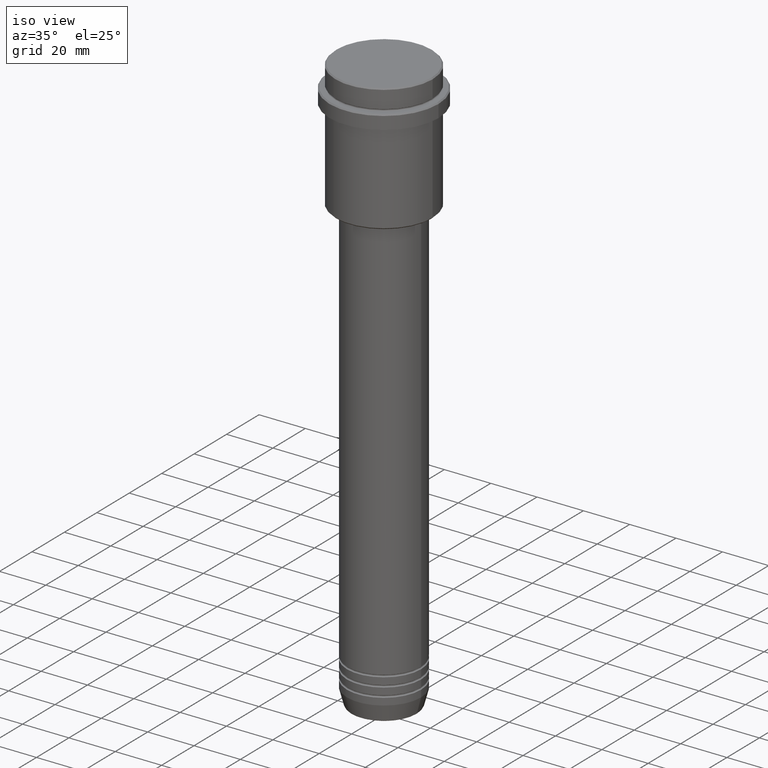
[diagram: clean part render]
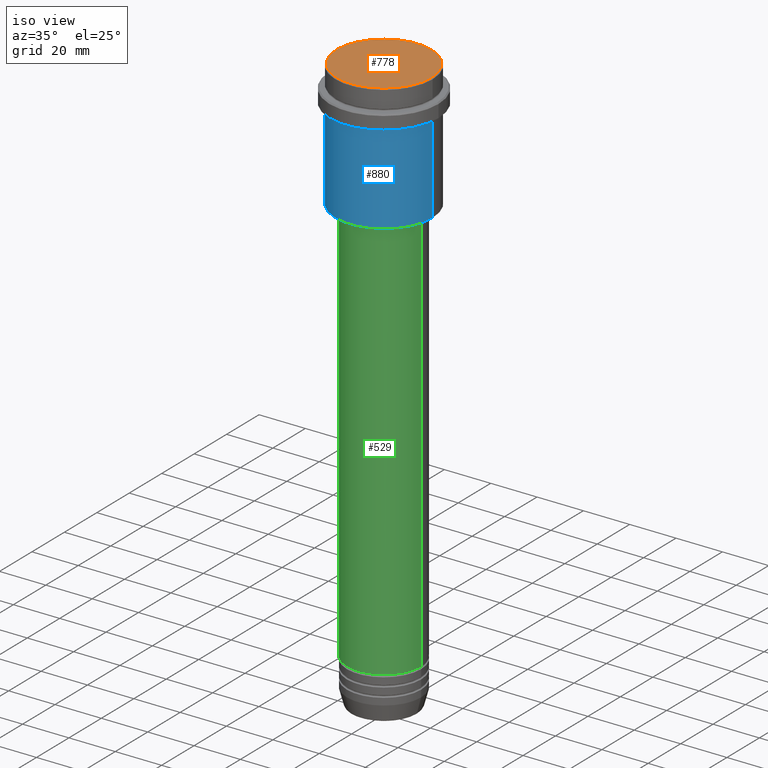
[diagram: same view with three faces highlighted in distinct colors, each labeled with its STEP entity id]
A machine part, iso view with three faces highlighted in distinct colors.
Their STEP definitions:

[orange] entity #778 — the highlighted planar face has unit normal (0, -0, 1).
#89 = ORIENTED_EDGE ( 'NONE', *, *, #1225, .T. ) ;
#237 = AXIS2_PLACEMENT_3D ( 'NONE', #412, #967, #825 ) ;
#244 = CARTESIAN_POINT ( 'NONE',  ( 20.50000000000001776, 2.541142108230758663E-15, 0.000000000000000000 ) ) ;
#309 = CARTESIAN_POINT ( 'NONE',  ( 0.000000000000000000, 0.000000000000000000, 0.000000000000000000 ) ) ;
#322 = EDGE_CURVE ( 'NONE', #1356, #1066, #598, .T. ) ;
#412 = CARTESIAN_POINT ( 'NONE',  ( 0.000000000000000000, 0.000000000000000000, 0.000000000000000000 ) ) ;
#428 = DIRECTION ( 'NONE',  ( -0.000000000000000000, -0.000000000000000000, 1.000000000000000000 ) ) ;
#598 = CIRCLE ( 'NONE', #617, 20.50000000000001776 ) ;
#617 = AXIS2_PLACEMENT_3D ( 'NONE', #818, #1246, #1229 ) ;
#706 = CARTESIAN_POINT ( 'NONE',  ( -20.50000000000001776, 0.000000000000000000, 0.000000000000000000 ) ) ;
#778 = ADVANCED_FACE ( 'NONE', ( #1149 ), #962, .T. ) ;
#818 = CARTESIAN_POINT ( 'NONE',  ( 0.000000000000000000, 0.000000000000000000, 0.000000000000000000 ) ) ;
#825 = DIRECTION ( 'NONE',  ( 1.000000000000000000, 0.000000000000000000, 0.000000000000000000 ) ) ;
#844 = EDGE_LOOP ( 'NONE', ( #89, #999 ) ) ;
#962 = PLANE ( 'NONE',  #237 ) ;
#967 = DIRECTION ( 'NONE',  ( 0.000000000000000000, -0.000000000000000000, 1.000000000000000000 ) ) ;
#993 = AXIS2_PLACEMENT_3D ( 'NONE', #309, #428, #1068 ) ;
#999 = ORIENTED_EDGE ( 'NONE', *, *, #322, .T. ) ;
#1066 = VERTEX_POINT ( 'NONE', #706 ) ;
#1068 = DIRECTION ( 'NONE',  ( 1.000000000000000000, 0.000000000000000000, 0.000000000000000000 ) ) ;
#1149 = FACE_OUTER_BOUND ( 'NONE', #844, .T. ) ;
#1225 = EDGE_CURVE ( 'NONE', #1066, #1356, #1235, .T. ) ;
#1229 = DIRECTION ( 'NONE',  ( 1.000000000000000000, 0.000000000000000000, 0.000000000000000000 ) ) ;
#1235 = CIRCLE ( 'NONE', #993, 20.50000000000001776 ) ;
#1246 = DIRECTION ( 'NONE',  ( -0.000000000000000000, -0.000000000000000000, 1.000000000000000000 ) ) ;
#1356 = VERTEX_POINT ( 'NONE', #244 ) ;

[blue] entity #880 — the highlighted cylindrical surface (partial cylindrical patch) has radius 21 mm, axis along (-0, -0, 1).
#29 = FACE_OUTER_BOUND ( 'NONE', #319, .T. ) ;
#71 = DIRECTION ( 'NONE',  ( 1.000000000000000000, 0.000000000000000000, 0.000000000000000000 ) ) ;
#117 = DIRECTION ( 'NONE',  ( -0.000000000000000000, -0.000000000000000000, 1.000000000000000000 ) ) ;
#133 = DIRECTION ( 'NONE',  ( -0.000000000000000000, -0.000000000000000000, 1.000000000000000000 ) ) ;
#319 = EDGE_LOOP ( 'NONE', ( #378, #1019, #1312, #526 ) ) ;
#348 = CARTESIAN_POINT ( 'NONE',  ( -20.99999999999999645, 2.571758278209441267E-15, 0.000000000000000000 ) ) ;
#367 = DIRECTION ( 'NONE',  ( -0.000000000000000000, -0.000000000000000000, 1.000000000000000000 ) ) ;
#368 = VERTEX_POINT ( 'NONE', #622 ) ;
#378 = ORIENTED_EDGE ( 'NONE', *, *, #1357, .F. ) ;
#418 = DIRECTION ( 'NONE',  ( -0.000000000000000000, -0.000000000000000000, 1.000000000000000000 ) ) ;
#452 = CYLINDRICAL_SURFACE ( 'NONE', #532, 20.99999999999999645 ) ;
#468 = AXIS2_PLACEMENT_3D ( 'NONE', #517, #418, #71 ) ;
#471 = CARTESIAN_POINT ( 'NONE',  ( 0.000000000000000000, 0.000000000000000000, 0.000000000000000000 ) ) ;
#517 = CARTESIAN_POINT ( 'NONE',  ( 0.000000000000000000, 0.000000000000000000, -16.00000000000000355 ) ) ;
#518 = AXIS2_PLACEMENT_3D ( 'NONE', #791, #133, #1206 ) ;
#526 = ORIENTED_EDGE ( 'NONE', *, *, #819, .F. ) ;
#532 = AXIS2_PLACEMENT_3D ( 'NONE', #471, #367, #1103 ) ;
#552 = VERTEX_POINT ( 'NONE', #643 ) ;
#583 = CIRCLE ( 'NONE', #468, 20.99999999999999645 ) ;
#619 = VECTOR ( 'NONE', #117, 1000.000000000000000 ) ;
#622 = CARTESIAN_POINT ( 'NONE',  ( -20.99999999999999645, 2.571758278209441267E-15, -54.49999999999995026 ) ) ;
#643 = CARTESIAN_POINT ( 'NONE',  ( 20.99999999999999645, 0.000000000000000000, -16.00000000000000355 ) ) ;
#734 = CARTESIAN_POINT ( 'NONE',  ( 20.99999999999999645, 0.000000000000000000, -54.49999999999995026 ) ) ;
#791 = CARTESIAN_POINT ( 'NONE',  ( 0.000000000000000000, 0.000000000000000000, -54.49999999999995026 ) ) ;
#819 = EDGE_CURVE ( 'NONE', #1181, #552, #583, .T. ) ;
#833 = VERTEX_POINT ( 'NONE', #734 ) ;
#880 = ADVANCED_FACE ( 'NONE', ( #29 ), #452, .T. ) ;
#881 = DIRECTION ( 'NONE',  ( -0.000000000000000000, -0.000000000000000000, 1.000000000000000000 ) ) ;
#889 = EDGE_CURVE ( 'NONE', #833, #552, #1318, .T. ) ;
#996 = LINE ( 'NONE', #348, #1169 ) ;
#1009 = CARTESIAN_POINT ( 'NONE',  ( 20.99999999999999645, 0.000000000000000000, 0.000000000000000000 ) ) ;
#1019 = ORIENTED_EDGE ( 'NONE', *, *, #1410, .T. ) ;
#1103 = DIRECTION ( 'NONE',  ( 1.000000000000000000, 0.000000000000000000, 0.000000000000000000 ) ) ;
#1167 = CARTESIAN_POINT ( 'NONE',  ( -20.99999999999999645, 2.571758278209441267E-15, -16.00000000000000355 ) ) ;
#1169 = VECTOR ( 'NONE', #881, 1000.000000000000000 ) ;
#1181 = VERTEX_POINT ( 'NONE', #1167 ) ;
#1206 = DIRECTION ( 'NONE',  ( -1.000000000000000000, 0.000000000000000000, 0.000000000000000000 ) ) ;
#1312 = ORIENTED_EDGE ( 'NONE', *, *, #889, .T. ) ;
#1318 = LINE ( 'NONE', #1009, #619 ) ;
#1330 = CIRCLE ( 'NONE', #518, 20.99999999999999645 ) ;
#1357 = EDGE_CURVE ( 'NONE', #368, #1181, #996, .T. ) ;
#1410 = EDGE_CURVE ( 'NONE', #368, #833, #1330, .T. ) ;

[green] entity #529 — the highlighted cylindrical surface (partial cylindrical patch) has radius 16 mm, axis along (-0, -0, 1).
#5 = AXIS2_PLACEMENT_3D ( 'NONE', #954, #1065, #1349 ) ;
#27 = VERTEX_POINT ( 'NONE', #640 ) ;
#44 = CARTESIAN_POINT ( 'NONE',  ( 16.00000000000000000, 0.000000000000000000, -230.9999999999998863 ) ) ;
#76 = EDGE_CURVE ( 'NONE', #27, #257, #795, .T. ) ;
#163 = EDGE_LOOP ( 'NONE', ( #1174, #963, #1295, #1102 ) ) ;
#175 = CARTESIAN_POINT ( 'NONE',  ( -16.00000000000000355, 1.959434878635765526E-15, -56.00000000000000000 ) ) ;
#192 = AXIS2_PLACEMENT_3D ( 'NONE', #1000, #1313, #445 ) ;
#234 = CARTESIAN_POINT ( 'NONE',  ( 16.00000000000000355, 0.000000000000000000, -56.00000000000000000 ) ) ;
#257 = VERTEX_POINT ( 'NONE', #175 ) ;
#295 = AXIS2_PLACEMENT_3D ( 'NONE', #1088, #457, #1101 ) ;
#346 = VERTEX_POINT ( 'NONE', #44 ) ;
#351 = EDGE_CURVE ( 'NONE', #27, #346, #775, .T. ) ;
#374 = VERTEX_POINT ( 'NONE', #234 ) ;
#445 = DIRECTION ( 'NONE',  ( 1.000000000000000000, 0.000000000000000000, 0.000000000000000000 ) ) ;
#457 = DIRECTION ( 'NONE',  ( -0.000000000000000000, -0.000000000000000000, 1.000000000000000000 ) ) ;
#487 = CARTESIAN_POINT ( 'NONE',  ( -16.00000000000000000, 1.959434878635765131E-15, 0.000000000000000000 ) ) ;
#529 = ADVANCED_FACE ( 'NONE', ( #566 ), #994, .T. ) ;
#566 = FACE_OUTER_BOUND ( 'NONE', #163, .T. ) ;
#580 = VECTOR ( 'NONE', #922, 1000.000000000000000 ) ;
#640 = CARTESIAN_POINT ( 'NONE',  ( -16.00000000000000000, 1.959434878635765131E-15, -230.9999999999998863 ) ) ;
#684 = LINE ( 'NONE', #890, #1092 ) ;
#775 = CIRCLE ( 'NONE', #5, 16.00000000000000000 ) ;
#795 = LINE ( 'NONE', #487, #580 ) ;
#890 = CARTESIAN_POINT ( 'NONE',  ( 16.00000000000000000, 0.000000000000000000, 0.000000000000000000 ) ) ;
#897 = DIRECTION ( 'NONE',  ( -0.000000000000000000, -0.000000000000000000, 1.000000000000000000 ) ) ;
#922 = DIRECTION ( 'NONE',  ( -0.000000000000000000, -0.000000000000000000, 1.000000000000000000 ) ) ;
#954 = CARTESIAN_POINT ( 'NONE',  ( 0.000000000000000000, 0.000000000000000000, -230.9999999999998863 ) ) ;
#955 = CIRCLE ( 'NONE', #295, 16.00000000000000355 ) ;
#963 = ORIENTED_EDGE ( 'NONE', *, *, #351, .T. ) ;
#973 = EDGE_CURVE ( 'NONE', #346, #374, #684, .T. ) ;
#994 = CYLINDRICAL_SURFACE ( 'NONE', #192, 16.00000000000000000 ) ;
#1000 = CARTESIAN_POINT ( 'NONE',  ( 0.000000000000000000, 0.000000000000000000, 0.000000000000000000 ) ) ;
#1065 = DIRECTION ( 'NONE',  ( -0.000000000000000000, -0.000000000000000000, 1.000000000000000000 ) ) ;
#1088 = CARTESIAN_POINT ( 'NONE',  ( 0.000000000000000000, 0.000000000000000000, -56.00000000000000000 ) ) ;
#1092 = VECTOR ( 'NONE', #897, 1000.000000000000000 ) ;
#1101 = DIRECTION ( 'NONE',  ( 1.000000000000000000, 0.000000000000000000, 0.000000000000000000 ) ) ;
#1102 = ORIENTED_EDGE ( 'NONE', *, *, #1406, .F. ) ;
#1174 = ORIENTED_EDGE ( 'NONE', *, *, #76, .F. ) ;
#1295 = ORIENTED_EDGE ( 'NONE', *, *, #973, .T. ) ;
#1313 = DIRECTION ( 'NONE',  ( -0.000000000000000000, -0.000000000000000000, 1.000000000000000000 ) ) ;
#1349 = DIRECTION ( 'NONE',  ( 1.000000000000000000, 0.000000000000000000, 0.000000000000000000 ) ) ;
#1406 = EDGE_CURVE ( 'NONE', #257, #374, #955, .T. ) ;